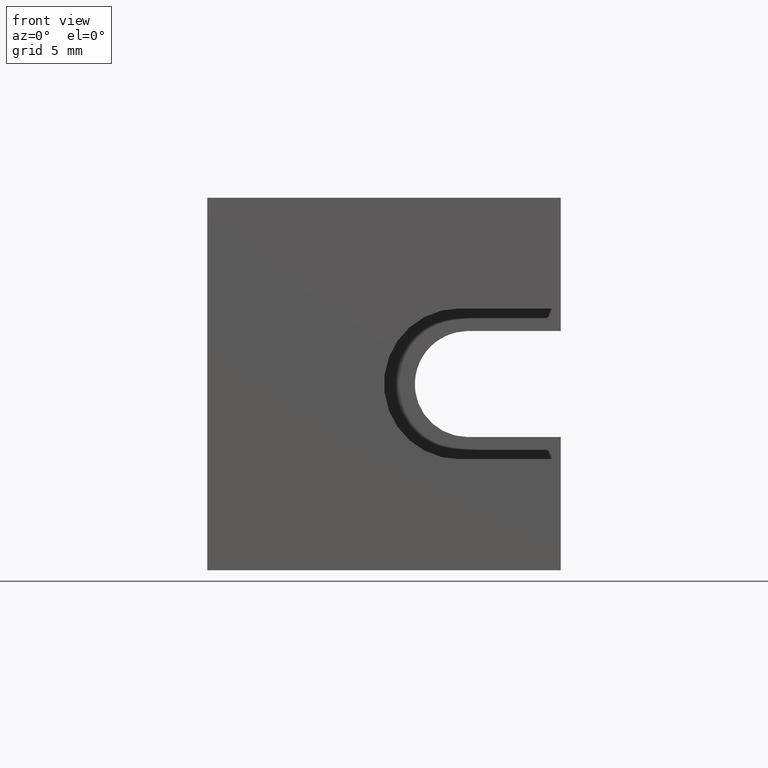
[diagram: clean part render]
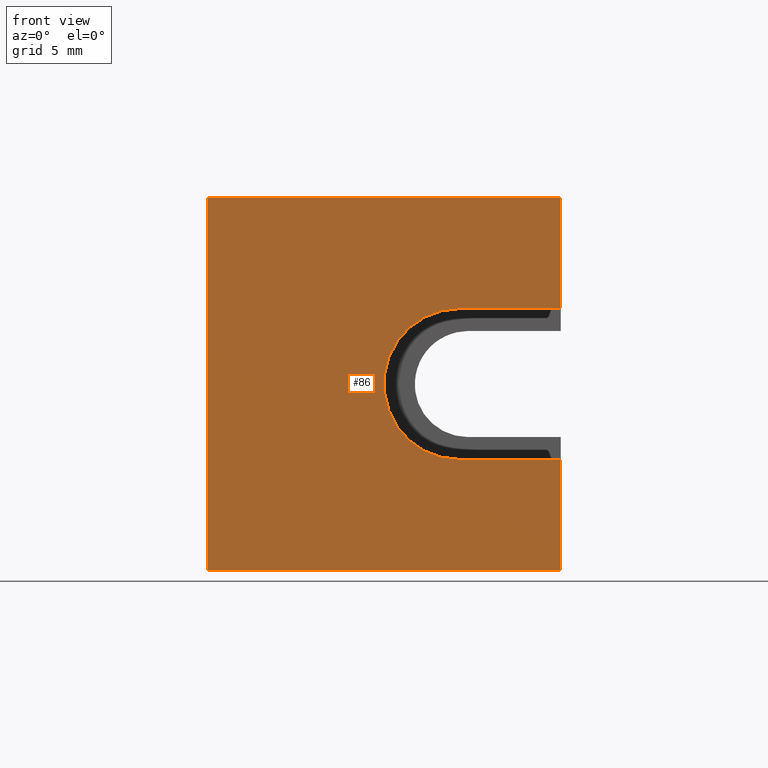
[diagram: same view with one face highlighted and labeled with its STEP entity id]
A machine part, front view. The second image highlights one B-rep face of the part: STEP entity #86.
In plain terms, the highlighted planar face has unit normal (0, 1, 0).
Its self-contained STEP definition (entity closure, byte-faithful):
#2 = EDGE_CURVE ( 'NONE', #755, #695, #1139, .T. ) ;
#4 = EDGE_CURVE ( 'NONE', #695, #690, #436, .T. ) ;
#6 = EDGE_CURVE ( 'NONE', #694, #755, #801, .T. ) ;
#30 = EDGE_CURVE ( 'NONE', #686, #694, #828, .T. ) ;
#55 = EDGE_CURVE ( 'NONE', #690, #711, #934, .T. ) ;
#62 = EDGE_CURVE ( 'NONE', #686, #723, #980, .T. ) ;
#86 = ADVANCED_FACE ( 'NONE', ( #1005 ), #1001, .F. ) ;
#99 = EDGE_CURVE ( 'NONE', #723, #719, #1033, .T. ) ;
#129 = EDGE_CURVE ( 'NONE', #711, #719, #240, .T. ) ;
#229 = DIRECTION ( 'NONE',  ( -1.000000000000000000, 0.0000000000000000000, -0.0000000000000000000 ) ) ;
#240 = LINE ( 'NONE', #280, #1235 ) ;
#280 = CARTESIAN_POINT ( 'NONE',  ( 0.0000000000000000000, 0.0000000000000000000, 0.0000000000000000000 ) ) ;
#436 = LINE ( 'NONE', #661, #1146 ) ;
#453 = EDGE_LOOP ( 'NONE', ( #545, #552, #618, #641, #561, #568, #621, #604 ) ) ;
#545 = ORIENTED_EDGE ( 'NONE', *, *, #4, .F. ) ;
#552 = ORIENTED_EDGE ( 'NONE', *, *, #2, .F. ) ;
#561 = ORIENTED_EDGE ( 'NONE', *, *, #62, .T. ) ;
#568 = ORIENTED_EDGE ( 'NONE', *, *, #99, .T. ) ;
#604 = ORIENTED_EDGE ( 'NONE', *, *, #55, .F. ) ;
#618 = ORIENTED_EDGE ( 'NONE', *, *, #6, .F. ) ;
#621 = ORIENTED_EDGE ( 'NONE', *, *, #129, .F. ) ;
#641 = ORIENTED_EDGE ( 'NONE', *, *, #30, .F. ) ;
#661 = CARTESIAN_POINT ( 'NONE',  ( 0.0000000000000000000, 0.0000000000000000000, 4.700000000000002800 ) ) ;
#686 = VERTEX_POINT ( 'NONE', #1464 ) ;
#690 = VERTEX_POINT ( 'NONE', #1461 ) ;
#694 = VERTEX_POINT ( 'NONE', #1327 ) ;
#695 = VERTEX_POINT ( 'NONE', #1467 ) ;
#711 = VERTEX_POINT ( 'NONE', #1322 ) ;
#719 = VERTEX_POINT ( 'NONE', #1325 ) ;
#723 = VERTEX_POINT ( 'NONE', #1350 ) ;
#755 = VERTEX_POINT ( 'NONE', #1371 ) ;
#772 = CARTESIAN_POINT ( 'NONE',  ( 0.0000000000000000000, 0.0000000000000000000, 11.10000000000000100 ) ) ;
#778 = DIRECTION ( 'NONE',  ( -0.0000000000000000000, -1.000000000000000000, -0.0000000000000000000 ) ) ;
#800 = DIRECTION ( 'NONE',  ( 0.0000000000000000000, 0.0000000000000000000, -1.000000000000000000 ) ) ;
#801 = LINE ( 'NONE', #772, #1135 ) ;
#805 = DIRECTION ( 'NONE',  ( 1.000000000000000000, 0.0000000000000000000, -0.0000000000000000000 ) ) ;
#812 = DIRECTION ( 'NONE',  ( -1.000000000000000000, -0.0000000000000000000, 0.0000000000000000000 ) ) ;
#816 = CARTESIAN_POINT ( 'NONE',  ( 10.69999999999999600, 0.0000000000000000000, 7.900000000000002100 ) ) ;
#828 = LINE ( 'NONE', #831, #1205 ) ;
#831 = CARTESIAN_POINT ( 'NONE',  ( 14.99999999999999600, 0.0000000000000000000, 15.80000000000000100 ) ) ;
#859 = DIRECTION ( 'NONE',  ( -0.0000000000000000000, 0.0000000000000000000, -1.000000000000000000 ) ) ;
#925 = DIRECTION ( 'NONE',  ( -0.0000000000000000000, 0.0000000000000000000, -1.000000000000000000 ) ) ;
#931 = CARTESIAN_POINT ( 'NONE',  ( 14.99999999999999600, 0.0000000000000000000, 15.80000000000000100 ) ) ;
#934 = LINE ( 'NONE', #931, #1154 ) ;
#951 = DIRECTION ( 'NONE',  ( -1.000000000000000000, 0.0000000000000000000, -0.0000000000000000000 ) ) ;
#971 = CARTESIAN_POINT ( 'NONE',  ( 0.0000000000000000000, 0.0000000000000000000, 15.80000000000000100 ) ) ;
#980 = LINE ( 'NONE', #971, #1171 ) ;
#1001 = PLANE ( 'NONE',  #1243 ) ;
#1002 = CARTESIAN_POINT ( 'NONE',  ( 0.0000000000000000000, 0.0000000000000000000, 15.80000000000000100 ) ) ;
#1005 = FACE_OUTER_BOUND ( 'NONE', #453, .T. ) ;
#1006 = DIRECTION ( 'NONE',  ( 0.0000000000000000000, 1.000000000000000000, 0.0000000000000000000 ) ) ;
#1011 = DIRECTION ( 'NONE',  ( 0.0000000000000000000, -0.0000000000000000000, 1.000000000000000000 ) ) ;
#1031 = CARTESIAN_POINT ( 'NONE',  ( 0.0000000000000000000, 0.0000000000000000000, 15.80000000000000100 ) ) ;
#1033 = LINE ( 'NONE', #1031, #1216 ) ;
#1071 = DIRECTION ( 'NONE',  ( 0.0000000000000000000, 0.0000000000000000000, -1.000000000000000000 ) ) ;
#1135 = VECTOR ( 'NONE', #812, 1000.000000000000000 ) ;
#1137 = AXIS2_PLACEMENT_3D ( 'NONE', #816, #778, #800 ) ;
#1139 = CIRCLE ( 'NONE', #1137, 3.199999999999999700 ) ;
#1146 = VECTOR ( 'NONE', #805, 1000.000000000000000 ) ;
#1154 = VECTOR ( 'NONE', #925, 1000.000000000000000 ) ;
#1171 = VECTOR ( 'NONE', #951, 1000.000000000000000 ) ;
#1205 = VECTOR ( 'NONE', #859, 1000.000000000000000 ) ;
#1216 = VECTOR ( 'NONE', #1071, 1000.000000000000000 ) ;
#1235 = VECTOR ( 'NONE', #229, 1000.000000000000000 ) ;
#1243 = AXIS2_PLACEMENT_3D ( 'NONE', #1002, #1006, #1011 ) ;
#1322 = CARTESIAN_POINT ( 'NONE',  ( 14.99999999999999600, 0.0000000000000000000, 0.0000000000000000000 ) ) ;
#1325 = CARTESIAN_POINT ( 'NONE',  ( 0.0000000000000000000, 0.0000000000000000000, 0.0000000000000000000 ) ) ;
#1327 = CARTESIAN_POINT ( 'NONE',  ( 14.99999999999999500, 0.0000000000000000000, 11.10000000000000300 ) ) ;
#1350 = CARTESIAN_POINT ( 'NONE',  ( 0.0000000000000000000, 0.0000000000000000000, 15.80000000000000100 ) ) ;
#1371 = CARTESIAN_POINT ( 'NONE',  ( 10.69999999999999600, 0.0000000000000000000, 11.10000000000000100 ) ) ;
#1461 = CARTESIAN_POINT ( 'NONE',  ( 14.99999999999999500, 0.0000000000000000000, 4.700000000000002800 ) ) ;
#1464 = CARTESIAN_POINT ( 'NONE',  ( 14.99999999999999600, 0.0000000000000000000, 15.80000000000000100 ) ) ;
#1467 = CARTESIAN_POINT ( 'NONE',  ( 10.69999999999999600, 0.0000000000000000000, 4.700000000000002800 ) ) ;